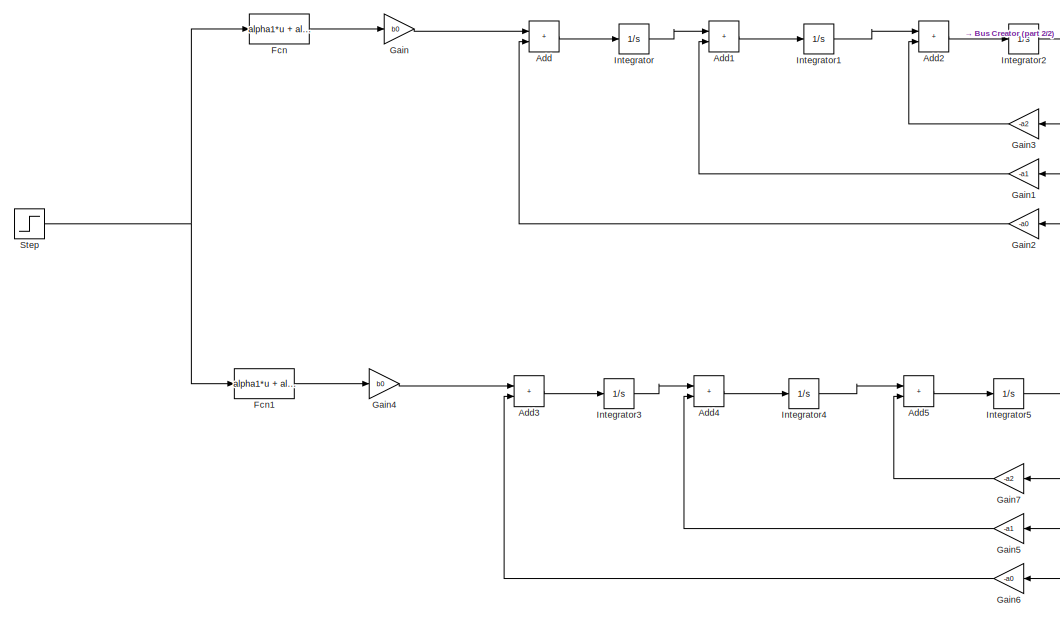
[diagram: root canvas - part 1/2, center side, full height]
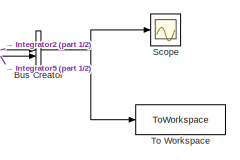
[diagram: root canvas - part 2/2, top right region]
MODEL slx_82498e4e12e2
KIND model
CONFIG AbsTol = auto
CONFIG EnableMultiTasking = off
CONFIG FixedStep = auto
CONFIG MaxStep = auto
CONFIG MinStep = auto
CONFIG RelTol = 1e-3
CONFIG SampleTimeConstraint = Unconstrained
CONFIG SolverName = VariableStepAuto
CONFIG StartTime = 0.0
CONFIG StopTime = 200
BLOCK [Sum] Add
  IconShape = rectangular
BLOCK [Sum] Add1
  IconShape = rectangular
BLOCK [Sum] Add2
  IconShape = rectangular
BLOCK [Sum] Add3
  IconShape = rectangular
BLOCK [Sum] Add4
  IconShape = rectangular
BLOCK [Sum] Add5
  IconShape = rectangular
BLOCK [BusCreator] Bus Creator
  DisplayOption = bar
  InheritFromInputs = on
  Inputs = 2
BLOCK [Fcn] Fcn
  Expr = alpha1*u + alpha2*u^2 + alpha3*u^3 + alpha4*u^4
BLOCK [Fcn] Fcn1
  Expr = alpha1*u + alpha2*u0^2+2*alpha2*u0*(u-u0) + alpha3*u0^3 + 3*alpha3*u0^2*(u-u0) + alpha4*u0^4 + 4*alpha4*u0^3*(u-u0)
BLOCK [Gain] Gain
  Gain = b0
BLOCK [Gain] Gain1
  Gain = -a1
  NameLocation = top
BLOCK [Gain] Gain2
  Gain = -a0
  NameLocation = top
BLOCK [Gain] Gain3
  Gain = -a2
  NameLocation = top
BLOCK [Gain] Gain4
  Gain = b0
BLOCK [Gain] Gain5
  Gain = -a1
  NameLocation = top
BLOCK [Gain] Gain6
  Gain = -a0
  NameLocation = top
BLOCK [Gain] Gain7
  Gain = -a2
  NameLocation = top
BLOCK [Integrator] Integrator
BLOCK [Integrator] Integrator1
BLOCK [Integrator] Integrator2
BLOCK [Integrator] Integrator3
BLOCK [Integrator] Integrator4
BLOCK [Integrator] Integrator5
BLOCK [Scope] Scope
  Floating = off
  NumInputPorts = 1
  ScopeSpecificationString = Simulink.scopes.TimeScopeBlockCfg('CurrentConfiguration', extmgr.ConfigurationSet(extmgr.Configuration('Core','General UI',true),extmgr.Configuration('Core','Source UI',true),extmgr.Configuration('Sources','WiredSimulink',true),extmgr.Configuration('Visuals','Time Domain',true,'SerializedDisplays',{struct('MinYLimReal','-0.69865','MaxYLimReal','0.07763','YLabelReal','','MinYLimMag','0.00000','MaxY...<+1345ch>
BLOCK [Step] Step
  After = 0.6
  SampleTime = 0
BLOCK [ToWorkspace] To Workspace
  FixptAsFi = on
  MaxDataPoints = inf
  SampleTime = -1
  SaveFormat = Timeseries
  VariableName = simout
LINE Add1:1 -> Integrator1:1
LINE Add2:1 -> Integrator2:1
LINE Add3:1 -> Integrator3:1
LINE Add4:1 -> Integrator4:1
LINE Add5:1 -> Integrator5:1
LINE Add:1 -> Integrator:1
NET Bus Creator:1 -> Scope:1, To Workspace:1
LINE Fcn1:1 -> Gain4:1
LINE Fcn:1 -> Gain:1
LINE Gain1:1 -> Add1:2
LINE Gain2:1 -> Add:2
LINE Gain3:1 -> Add2:2
LINE Gain4:1 -> Add3:1
LINE Gain5:1 -> Add4:2
LINE Gain6:1 -> Add3:2
LINE Gain7:1 -> Add5:2
LINE Gain:1 -> Add:1
LINE Integrator1:1 -> Add2:1
NET Integrator2:1 -> Bus Creator:1, Gain1:1, Gain2:1, Gain3:1
LINE Integrator3:1 -> Add4:1
LINE Integrator4:1 -> Add5:1
NET Integrator5:1 -> Bus Creator:2, Gain5:1, Gain6:1, Gain7:1
LINE Integrator:1 -> Add1:1
NET Step:1 -> Fcn1:1, Fcn:1
note: NET lines group one-source signal fan-out (src -> all destinations, sorted); 1:1 wires keep LINE
